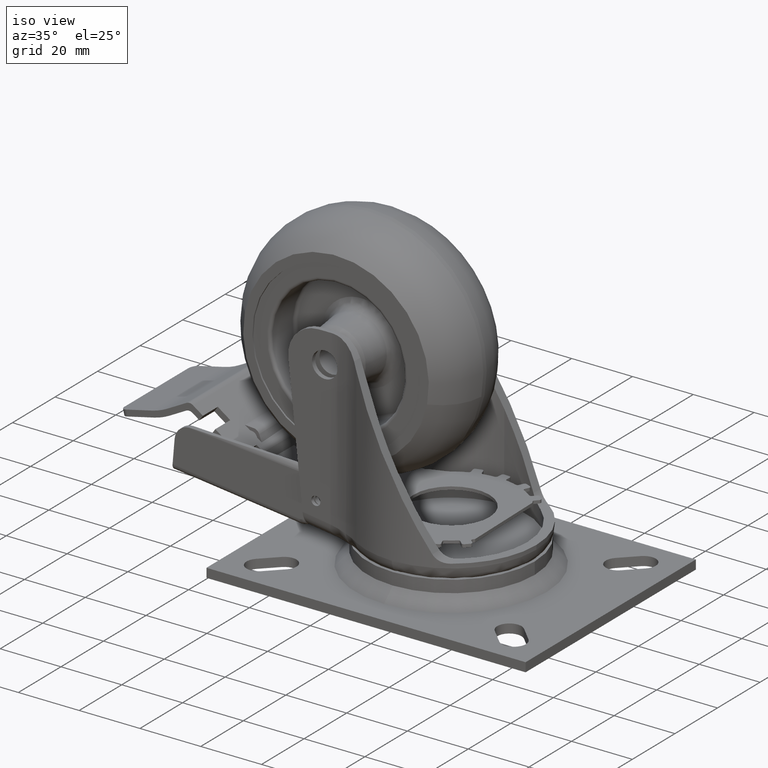
[diagram: clean part render]
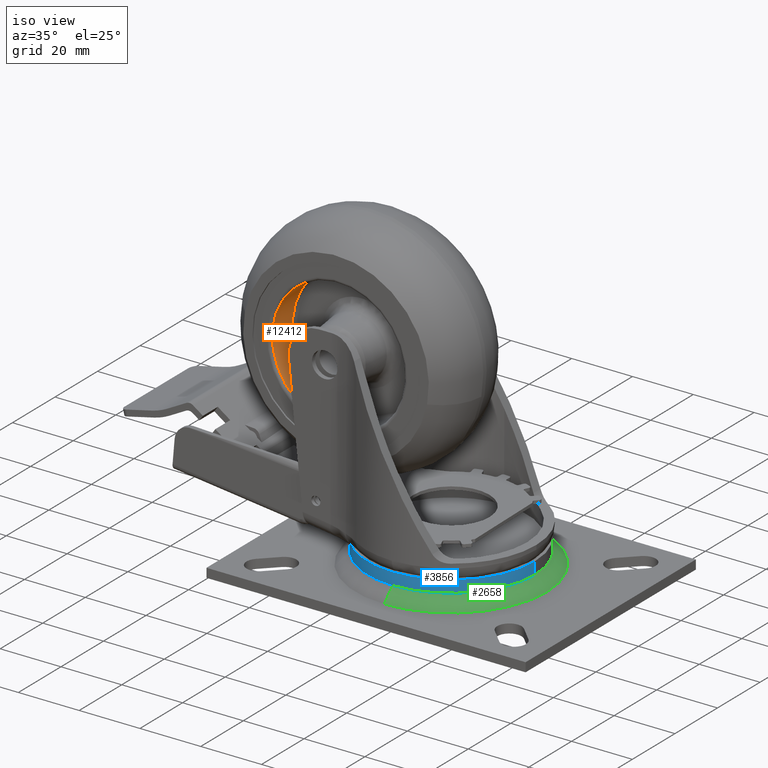
[diagram: same view with three faces highlighted in distinct colors, each labeled with its STEP entity id]
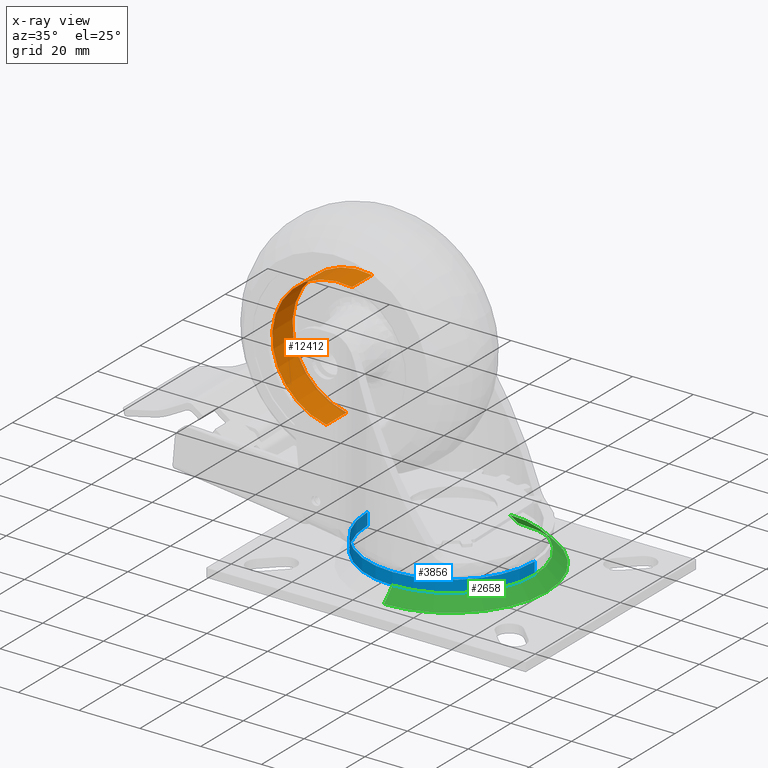
[diagram: x-ray of the same camera — body ghosted, the three highlighted faces saturated]
A machine part, iso view with three faces highlighted in distinct colors.
The next image is the same camera in x-ray (body ghosted, the three faces saturated) — at least one of them is partly hidden behind the body in this view.
Their STEP definitions:

[orange] entity #12412 — the highlighted cylindrical surface (partial cylindrical patch) has radius 22 mm, axis along (0.0019, -1, -0).
#9487 = DIRECTION ( 'NONE',  ( -0.0000000000000000000, -0.0000000000000000000, 1.000000000000000000 ) ) ;
#9747 = DIRECTION ( 'NONE',  ( 1.000000000000000000, 0.0000000000000000000, 0.0000000000000000000 ) ) ;
#10742 = CARTESIAN_POINT ( 'NONE',  ( 0.0000000000000000000, 0.0000000000000000000, 1.500000000000000000 ) ) ;
#10743 = AXIS2_PLACEMENT_3D ( 'NONE', #10742, #9487, #9747 ) ;
#10744 = CIRCLE ( 'NONE', #10743, 22.00000000000000000 ) ;
#10745 = DIRECTION ( 'NONE',  ( 0.0000000000000000000, 0.0000000000000000000, -1.000000000000000000 ) ) ;
#10746 = VECTOR ( 'NONE', #10745, 1000.000000000000000 ) ;
#10747 = CARTESIAN_POINT ( 'NONE',  ( 22.00000000000000000, 2.694133978409230000E-015, 11.00000000000000000 ) ) ;
#10748 = LINE ( 'NONE', #10747, #10746 ) ;
#10798 = DIRECTION ( 'NONE',  ( 0.0000000000000000000, 0.0000000000000000000, -1.000000000000000000 ) ) ;
#10799 = VECTOR ( 'NONE', #10798, 1000.000000000000000 ) ;
#10800 = CARTESIAN_POINT ( 'NONE',  ( -22.00000000000000000, 0.0000000000000000000, 11.00000000000000000 ) ) ;
#10801 = LINE ( 'NONE', #10800, #10799 ) ;
#10826 = CARTESIAN_POINT ( 'NONE',  ( -22.00000000000000000, 0.0000000000000000000, 1.500000000000000000 ) ) ;
#10832 = CARTESIAN_POINT ( 'NONE',  ( 22.00000000000000000, 2.694133978409230000E-015, 1.500000000000000000 ) ) ;
#10899 = DIRECTION ( 'NONE',  ( -1.000000000000000000, 0.0000000000000000000, 0.0000000000000000000 ) ) ;
#10900 = DIRECTION ( 'NONE',  ( 0.0000000000000000000, 0.0000000000000000000, -1.000000000000000000 ) ) ;
#10901 = CARTESIAN_POINT ( 'NONE',  ( 0.0000000000000000000, 0.0000000000000000000, 11.00000000000000000 ) ) ;
#10902 = AXIS2_PLACEMENT_3D ( 'NONE', #10901, #10900, #10899 ) ;
#10903 = CIRCLE ( 'NONE', #10962, 22.00000000000000000 ) ;
#10904 = CYLINDRICAL_SURFACE ( 'NONE', #10902, 22.00000000000000000 ) ;
#10905 = FACE_OUTER_BOUND ( 'NONE', #12413, .T. ) ;
#10957 = CARTESIAN_POINT ( 'NONE',  ( 22.00000000000000000, 2.694133978409230400E-015, 11.00000000000000000 ) ) ;
#10958 = CARTESIAN_POINT ( 'NONE',  ( -22.00000000000000000, 0.0000000000000000000, 11.00000000000000000 ) ) ;
#10959 = DIRECTION ( 'NONE',  ( -1.000000000000000000, 0.0000000000000000000, 0.0000000000000000000 ) ) ;
#10960 = DIRECTION ( 'NONE',  ( -0.0000000000000000000, -0.0000000000000000000, 1.000000000000000000 ) ) ;
#10961 = CARTESIAN_POINT ( 'NONE',  ( 0.0000000000000000000, 0.0000000000000000000, 11.00000000000000000 ) ) ;
#10962 = AXIS2_PLACEMENT_3D ( 'NONE', #10961, #10960, #10959 ) ;
#12338 = EDGE_CURVE ( 'NONE', #12417, #12355, #10748, .T. ) ;
#12339 = ORIENTED_EDGE ( 'NONE', *, *, #12340, .F. ) ;
#12340 = EDGE_CURVE ( 'NONE', #12358, #12355, #10744, .T. ) ;
#12341 = ORIENTED_EDGE ( 'NONE', *, *, #12342, .F. ) ;
#12342 = EDGE_CURVE ( 'NONE', #12416, #12358, #10801, .T. ) ;
#12355 = VERTEX_POINT ( 'NONE', #10832 ) ;
#12358 = VERTEX_POINT ( 'NONE', #10826 ) ;
#12412 = ADVANCED_FACE ( 'NONE', ( #10905 ), #10904, .F. ) ;
#12413 = EDGE_LOOP ( 'NONE', ( #12414, #12418, #12339, #12341 ) ) ;
#12414 = ORIENTED_EDGE ( 'NONE', *, *, #12415, .T. ) ;
#12415 = EDGE_CURVE ( 'NONE', #12416, #12417, #10903, .T. ) ;
#12416 = VERTEX_POINT ( 'NONE', #10958 ) ;
#12417 = VERTEX_POINT ( 'NONE', #10957 ) ;
#12418 = ORIENTED_EDGE ( 'NONE', *, *, #12338, .T. ) ;

[blue] entity #3856 — the highlighted cylindrical surface (partial cylindrical patch) has radius 27.5 mm, axis along (-0, -0, -1).
#2488 = VERTEX_POINT ( 'NONE', #6977 ) ;
#2491 = VERTEX_POINT ( 'NONE', #6976 ) ;
#2498 = EDGE_CURVE ( 'NONE', #2488, #2501, #6975, .T. ) ;
#2501 = VERTEX_POINT ( 'NONE', #6971 ) ;
#2516 = VERTEX_POINT ( 'NONE', #7007 ) ;
#2573 = EDGE_CURVE ( 'NONE', #2491, #2516, #7044, .T. ) ;
#2667 = EDGE_CURVE ( 'NONE', #2670, #2501, #7187, .T. ) ;
#2670 = VERTEX_POINT ( 'NONE', #7182 ) ;
#3691 = EDGE_CURVE ( 'NONE', #2516, #2670, #8112, .T. ) ;
#3734 = ORIENTED_EDGE ( 'NONE', *, *, #2667, .T. ) ;
#3856 = ADVANCED_FACE ( 'NONE', ( #8242 ), #8239, .T. ) ;
#3858 = EDGE_LOOP ( 'NONE', ( #3860, #3864, #3870, #3875, #3734 ) ) ;
#3860 = ORIENTED_EDGE ( 'NONE', *, *, #2498, .F. ) ;
#3864 = ORIENTED_EDGE ( 'NONE', *, *, #3868, .F. ) ;
#3868 = EDGE_CURVE ( 'NONE', #2491, #2488, #8232, .T. ) ;
#3870 = ORIENTED_EDGE ( 'NONE', *, *, #2573, .T. ) ;
#3875 = ORIENTED_EDGE ( 'NONE', *, *, #3691, .T. ) ;
#6971 = CARTESIAN_POINT ( 'NONE',  ( 79.99999999999998600, 40.00000000000000000, 6.999999999999895200 ) ) ;
#6972 = DIRECTION ( 'NONE',  ( -0.0000000000000000000, -0.0000000000000000000, -1.000000000000000000 ) ) ;
#6973 = VECTOR ( 'NONE', #6972, 1000.000000000000000 ) ;
#6974 = CARTESIAN_POINT ( 'NONE',  ( 79.99999999999998600, 40.00000000000000000, 11.00000000000000000 ) ) ;
#6975 = LINE ( 'NONE', #6974, #6973 ) ;
#6976 = CARTESIAN_POINT ( 'NONE',  ( 25.00000000000000400, 40.00000000000000000, 11.00000000000000000 ) ) ;
#6977 = CARTESIAN_POINT ( 'NONE',  ( 79.99999999999998600, 40.00000000000000000, 11.00000000000000000 ) ) ;
#7007 = CARTESIAN_POINT ( 'NONE',  ( 24.99999999999999600, 40.00000000000000000, 6.999999999999895200 ) ) ;
#7041 = DIRECTION ( 'NONE',  ( -0.0000000000000000000, -0.0000000000000000000, -1.000000000000000000 ) ) ;
#7042 = VECTOR ( 'NONE', #7041, 1000.000000000000000 ) ;
#7043 = CARTESIAN_POINT ( 'NONE',  ( 25.00000000000000400, 40.00000000000000000, 11.00000000000000000 ) ) ;
#7044 = LINE ( 'NONE', #7043, #7042 ) ;
#7182 = CARTESIAN_POINT ( 'NONE',  ( 52.49999999999999300, 12.50000000000000000, 6.999999999999895200 ) ) ;
#7183 = DIRECTION ( 'NONE',  ( -1.000000000000000000, 0.0000000000000000000, 3.816391647148976400E-015 ) ) ;
#7184 = DIRECTION ( 'NONE',  ( -0.0000000000000000000, -0.0000000000000000000, 1.000000000000000000 ) ) ;
#7185 = CARTESIAN_POINT ( 'NONE',  ( 52.50000000000000000, 40.00000000000000000, 6.999999999999895200 ) ) ;
#7186 = AXIS2_PLACEMENT_3D ( 'NONE', #7185, #7184, #7183 ) ;
#7187 = CIRCLE ( 'NONE', #7186, 27.49999999999999600 ) ;
#8108 = DIRECTION ( 'NONE',  ( -1.000000000000000000, 0.0000000000000000000, 3.816391647148976400E-015 ) ) ;
#8109 = DIRECTION ( 'NONE',  ( -0.0000000000000000000, -0.0000000000000000000, 1.000000000000000000 ) ) ;
#8110 = CARTESIAN_POINT ( 'NONE',  ( 52.50000000000000000, 40.00000000000000000, 6.999999999999895200 ) ) ;
#8111 = AXIS2_PLACEMENT_3D ( 'NONE', #8110, #8109, #8108 ) ;
#8112 = CIRCLE ( 'NONE', #8111, 27.49999999999999600 ) ;
#8232 = CIRCLE ( 'NONE', #8296, 27.49999999999998900 ) ;
#8236 = DIRECTION ( 'NONE',  ( -1.000000000000000000, 0.0000000000000000000, 0.0000000000000000000 ) ) ;
#8237 = DIRECTION ( 'NONE',  ( -0.0000000000000000000, -0.0000000000000000000, -1.000000000000000000 ) ) ;
#8238 = AXIS2_PLACEMENT_3D ( 'NONE', #8241, #8237, #8236 ) ;
#8239 = CYLINDRICAL_SURFACE ( 'NONE', #8238, 27.49999999999999300 ) ;
#8241 = CARTESIAN_POINT ( 'NONE',  ( 52.50000000000000000, 40.00000000000000000, 11.00000000000000000 ) ) ;
#8242 = FACE_OUTER_BOUND ( 'NONE', #3858, .T. ) ;
#8293 = DIRECTION ( 'NONE',  ( 1.000000000000000000, 0.0000000000000000000, 0.0000000000000000000 ) ) ;
#8294 = DIRECTION ( 'NONE',  ( 0.0000000000000000000, 0.0000000000000000000, 1.000000000000000000 ) ) ;
#8295 = CARTESIAN_POINT ( 'NONE',  ( 52.50000000000000000, 40.00000000000000000, 11.00000000000000000 ) ) ;
#8296 = AXIS2_PLACEMENT_3D ( 'NONE', #8295, #8294, #8293 ) ;

[green] entity #2658 — the highlighted conical surface has half-angle 45 deg.
#2501 = VERTEX_POINT ( 'NONE', #6971 ) ;
#2504 = EDGE_CURVE ( 'NONE', #2501, #2509, #6970, .T. ) ;
#2509 = VERTEX_POINT ( 'NONE', #6965 ) ;
#2551 = EDGE_CURVE ( 'NONE', #2555, #2682, #7011, .T. ) ;
#2555 = VERTEX_POINT ( 'NONE', #7059 ) ;
#2559 = ORIENTED_EDGE ( 'NONE', *, *, #2560, .F. ) ;
#2560 = EDGE_CURVE ( 'NONE', #2509, #2555, #7058, .T. ) ;
#2563 = ORIENTED_EDGE ( 'NONE', *, *, #2504, .F. ) ;
#2620 = EDGE_LOOP ( 'NONE', ( #2661, #2673, #2686, #2559, #2563 ) ) ;
#2658 = ADVANCED_FACE ( 'NONE', ( #7138 ), #7137, .T. ) ;
#2661 = ORIENTED_EDGE ( 'NONE', *, *, #2667, .F. ) ;
#2667 = EDGE_CURVE ( 'NONE', #2670, #2501, #7187, .T. ) ;
#2670 = VERTEX_POINT ( 'NONE', #7182 ) ;
#2673 = ORIENTED_EDGE ( 'NONE', *, *, #2677, .T. ) ;
#2677 = EDGE_CURVE ( 'NONE', #2670, #2682, #7177, .T. ) ;
#2682 = VERTEX_POINT ( 'NONE', #7172 ) ;
#2686 = ORIENTED_EDGE ( 'NONE', *, *, #2551, .F. ) ;
#6965 = CARTESIAN_POINT ( 'NONE',  ( 52.49999999999999300, 67.50000000000000000, 6.999999999999895200 ) ) ;
#6966 = DIRECTION ( 'NONE',  ( -1.000000000000000000, 0.0000000000000000000, 3.816391647148976400E-015 ) ) ;
#6967 = DIRECTION ( 'NONE',  ( -0.0000000000000000000, -0.0000000000000000000, 1.000000000000000000 ) ) ;
#6968 = CARTESIAN_POINT ( 'NONE',  ( 52.50000000000000000, 40.00000000000000000, 6.999999999999895200 ) ) ;
#6969 = AXIS2_PLACEMENT_3D ( 'NONE', #6968, #6967, #6966 ) ;
#6970 = CIRCLE ( 'NONE', #6969, 27.49999999999999600 ) ;
#6971 = CARTESIAN_POINT ( 'NONE',  ( 79.99999999999998600, 40.00000000000000000, 6.999999999999895200 ) ) ;
#6994 = CARTESIAN_POINT ( 'NONE',  ( 52.49999999999999300, 40.00000000000000000, 2.999999999999891600 ) ) ;
#7008 = DIRECTION ( 'NONE',  ( 0.0000000000000000000, 1.000000000000000000, -1.376764663473652600E-017 ) ) ;
#7009 = DIRECTION ( 'NONE',  ( -3.979194099973629400E-033, -1.577021341797097500E-017, -1.000000000000000000 ) ) ;
#7010 = AXIS2_PLACEMENT_3D ( 'NONE', #6994, #7009, #7008 ) ;
#7011 = CIRCLE ( 'NONE', #7010, 31.50000000000008900 ) ;
#7055 = DIRECTION ( 'NONE',  ( -2.813715131748855500E-033, 0.7071067811865472400, -0.7071067811865479100 ) ) ;
#7056 = VECTOR ( 'NONE', #7055, 999.9999999999998900 ) ;
#7057 = CARTESIAN_POINT ( 'NONE',  ( 52.49999999999999300, 67.49999999999998600, 7.000000000000000000 ) ) ;
#7058 = LINE ( 'NONE', #7057, #7056 ) ;
#7059 = CARTESIAN_POINT ( 'NONE',  ( 52.49999999999999300, 71.50000000000008500, 2.999999999999891600 ) ) ;
#7133 = DIRECTION ( 'NONE',  ( 0.0000000000000000000, 1.000000000000000000, 0.0000000000000000000 ) ) ;
#7134 = DIRECTION ( 'NONE',  ( -3.979194099973629400E-033, -1.577021341797097500E-017, -1.000000000000000000 ) ) ;
#7135 = AXIS2_PLACEMENT_3D ( 'NONE', #7144, #7134, #7133 ) ;
#7137 = CONICAL_SURFACE ( 'NONE', #7135, 27.49999999999998900, 0.7853981633974479500 ) ;
#7138 = FACE_OUTER_BOUND ( 'NONE', #2620, .T. ) ;
#7144 = CARTESIAN_POINT ( 'NONE',  ( 52.49999999999999300, 40.00000000000000000, 7.000000000000000000 ) ) ;
#7172 = CARTESIAN_POINT ( 'NONE',  ( 52.49999999999999300, 8.499999999999904100, 2.999999999999891600 ) ) ;
#7174 = DIRECTION ( 'NONE',  ( 8.659274570719352900E-017, -0.7071067811865472400, -0.7071067811865479100 ) ) ;
#7175 = VECTOR ( 'NONE', #7174, 999.9999999999998900 ) ;
#7176 = CARTESIAN_POINT ( 'NONE',  ( 52.49999999999999300, 12.50000000000001100, 7.000000000000000000 ) ) ;
#7177 = LINE ( 'NONE', #7176, #7175 ) ;
#7182 = CARTESIAN_POINT ( 'NONE',  ( 52.49999999999999300, 12.50000000000000000, 6.999999999999895200 ) ) ;
#7183 = DIRECTION ( 'NONE',  ( -1.000000000000000000, 0.0000000000000000000, 3.816391647148976400E-015 ) ) ;
#7184 = DIRECTION ( 'NONE',  ( -0.0000000000000000000, -0.0000000000000000000, 1.000000000000000000 ) ) ;
#7185 = CARTESIAN_POINT ( 'NONE',  ( 52.50000000000000000, 40.00000000000000000, 6.999999999999895200 ) ) ;
#7186 = AXIS2_PLACEMENT_3D ( 'NONE', #7185, #7184, #7183 ) ;
#7187 = CIRCLE ( 'NONE', #7186, 27.49999999999999600 ) ;